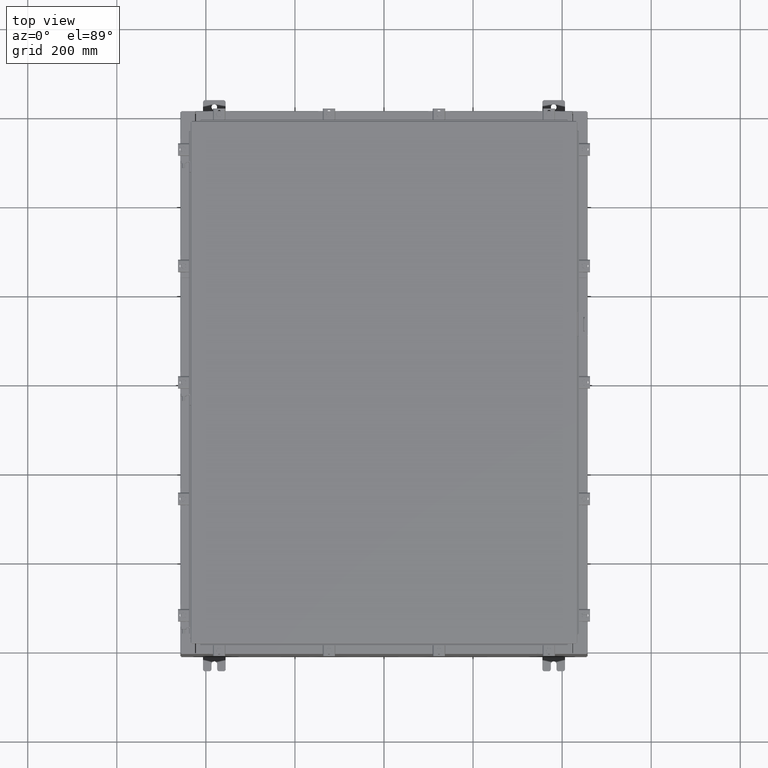
[diagram: clean part render]
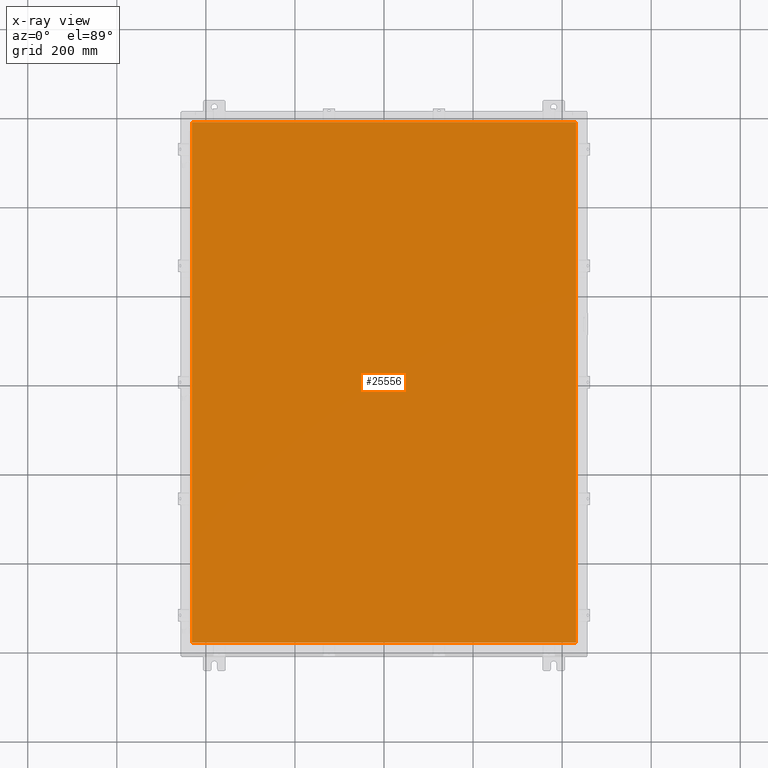
[diagram: x-ray — body ghosted, one internal face saturated and labeled with its STEP entity id]
A machine part, top view, then the same camera in x-ray: the body is ghosted and one INTERNAL B-rep face — a face not visible from any outside direction — is saturated and labeled: STEP entity #25556.
In plain terms, the highlighted planar face has unit normal (0, 0, -1).
Its self-contained STEP definition (entity closure, byte-faithful):
#23 = LINE ( 'NONE', #9328, #10491 ) ;
#1460 = DIRECTION ( 'NONE',  ( -1.000000000000000000, -0.0000000000000000000, -0.0000000000000000000 ) ) ;
#2652 = CARTESIAN_POINT ( 'NONE',  ( -16.99029999999999800, -23.00630000000000000, -0.07469999999999797600 ) ) ;
#3774 = LINE ( 'NONE', #16816, #19326 ) ;
#4158 = DIRECTION ( 'NONE',  ( 0.0000000000000000000, -1.000000000000000000, 0.0000000000000000000 ) ) ;
#4728 = DIRECTION ( 'NONE',  ( 1.000000000000000000, -0.0000000000000000000, -0.0000000000000000000 ) ) ;
#4812 = CARTESIAN_POINT ( 'NONE',  ( 0.0000000000000000000, 0.0000000000000000000, -0.07470000000000015500 ) ) ;
#4908 = DIRECTION ( 'NONE',  ( -1.000000000000000000, 0.0000000000000000000, -0.0000000000000000000 ) ) ;
#5388 = EDGE_CURVE ( 'NONE', #20174, #17489, #20471, .T. ) ;
#5906 = VECTOR ( 'NONE', #4728, 39.37007874015748100 ) ;
#7429 = CARTESIAN_POINT ( 'NONE',  ( -16.99029999999999800, -23.00629999999999600, -0.07470000000000015500 ) ) ;
#8235 = EDGE_CURVE ( 'NONE', #17489, #9558, #3774, .T. ) ;
#9146 = CARTESIAN_POINT ( 'NONE',  ( 16.99030000000000100, -23.00630000000000000, -0.07470000000000015500 ) ) ;
#9328 = CARTESIAN_POINT ( 'NONE',  ( 16.99030000000000100, -23.00629999999999600, -0.07470000000000015500 ) ) ;
#9558 = VERTEX_POINT ( 'NONE', #7429 ) ;
#10491 = VECTOR ( 'NONE', #26149, 39.37007874015748100 ) ;
#10696 = CARTESIAN_POINT ( 'NONE',  ( 16.99030000000000100, 23.00629999999999600, -0.07470000000000015500 ) ) ;
#12163 = AXIS2_PLACEMENT_3D ( 'NONE', #4812, #17590, #4908 ) ;
#14224 = VERTEX_POINT ( 'NONE', #9146 ) ;
#14848 = ORIENTED_EDGE ( 'NONE', *, *, #21516, .F. ) ;
#15430 = PLANE ( 'NONE',  #12163 ) ;
#15936 = CARTESIAN_POINT ( 'NONE',  ( -16.99029999999999800, 23.00629999999999600, -0.07470000000000015500 ) ) ;
#16499 = EDGE_LOOP ( 'NONE', ( #23745, #14848, #20627, #19542 ) ) ;
#16816 = CARTESIAN_POINT ( 'NONE',  ( -16.99029999999999800, 23.00629999999999600, -0.07470000000000015500 ) ) ;
#17489 = VERTEX_POINT ( 'NONE', #15936 ) ;
#17590 = DIRECTION ( 'NONE',  ( 0.0000000000000000000, 0.0000000000000000000, -1.000000000000000000 ) ) ;
#17845 = CARTESIAN_POINT ( 'NONE',  ( 16.99029999999999800, 23.00630000000000000, -0.07469999999999797600 ) ) ;
#18719 = FACE_OUTER_BOUND ( 'NONE', #16499, .T. ) ;
#19138 = VECTOR ( 'NONE', #1460, 39.37007874015748100 ) ;
#19326 = VECTOR ( 'NONE', #4158, 39.37007874015748100 ) ;
#19542 = ORIENTED_EDGE ( 'NONE', *, *, #5388, .F. ) ;
#20174 = VERTEX_POINT ( 'NONE', #10696 ) ;
#20471 = LINE ( 'NONE', #17845, #19138 ) ;
#20627 = ORIENTED_EDGE ( 'NONE', *, *, #8235, .F. ) ;
#21516 = EDGE_CURVE ( 'NONE', #9558, #14224, #22803, .T. ) ;
#22803 = LINE ( 'NONE', #2652, #5906 ) ;
#23299 = EDGE_CURVE ( 'NONE', #14224, #20174, #23, .T. ) ;
#23745 = ORIENTED_EDGE ( 'NONE', *, *, #23299, .F. ) ;
#25556 = ADVANCED_FACE ( 'NONE', ( #18719 ), #15430, .T. ) ;
#26149 = DIRECTION ( 'NONE',  ( 0.0000000000000000000, 1.000000000000000000, 0.0000000000000000000 ) ) ;